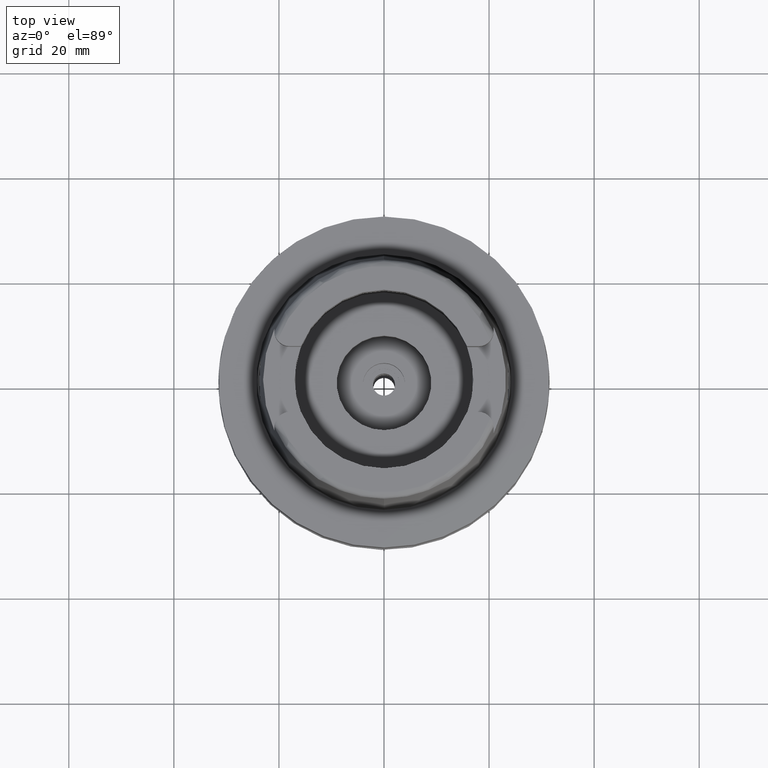
[diagram: clean part render]
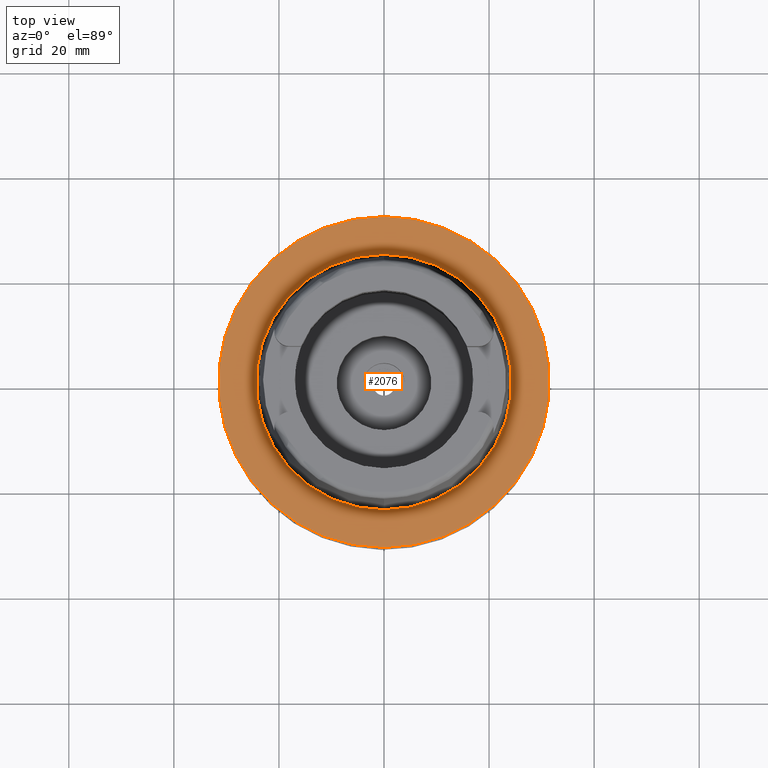
[diagram: same view with one face highlighted and labeled with its STEP entity id]
A machine part, top view. The second image highlights one B-rep face of the part: STEP entity #2076.
In plain terms, the highlighted planar face has unit normal (0, 0, -1).
Its self-contained STEP definition (entity closure, byte-faithful):
#211 = VERTEX_POINT ( 'NONE', #3516 ) ;
#570 = EDGE_CURVE ( 'NONE', #4201, #3991, #4044, .T. ) ;
#675 = FACE_BOUND ( 'NONE', #4983, .T. ) ;
#737 = DIRECTION ( 'NONE',  ( 0.0000000000000000000, 1.000000000000000000, 0.0000000000000000000 ) ) ;
#936 = ORIENTED_EDGE ( 'NONE', *, *, #570, .F. ) ;
#972 = CIRCLE ( 'NONE', #5176, 31.50000000000000000 ) ;
#1073 = CARTESIAN_POINT ( 'NONE',  ( 0.0000000000000000000, 1.224646799146999965E-14, 0.0000000000000000000 ) ) ;
#1636 = DIRECTION ( 'NONE',  ( 0.0000000000000000000, 0.0000000000000000000, 1.000000000000000000 ) ) ;
#2020 = DIRECTION ( 'NONE',  ( 0.0000000000000000000, 0.0000000000000000000, -1.000000000000000000 ) ) ;
#2046 = EDGE_CURVE ( 'NONE', #2380, #211, #2977, .T. ) ;
#2076 = ADVANCED_FACE ( 'NONE', ( #4985, #675 ), #2425, .F. ) ;
#2380 = VERTEX_POINT ( 'NONE', #5147 ) ;
#2425 = PLANE ( 'NONE',  #4528 ) ;
#2846 = EDGE_CURVE ( 'NONE', #211, #2380, #972, .T. ) ;
#2977 = CIRCLE ( 'NONE', #3976, 31.50000000000000000 ) ;
#2994 = EDGE_CURVE ( 'NONE', #3991, #4201, #4176, .T. ) ;
#2997 = DIRECTION ( 'NONE',  ( 0.0000000000000000000, 0.0000000000000000000, 1.000000000000000000 ) ) ;
#3109 = ORIENTED_EDGE ( 'NONE', *, *, #2994, .F. ) ;
#3278 = DIRECTION ( 'NONE',  ( 0.0000000000000000000, -1.000000000000000000, 0.0000000000000000000 ) ) ;
#3312 = CARTESIAN_POINT ( 'NONE',  ( 0.0000000000000000000, 1.679603085030999862E-14, -8.526512829120999020E-14 ) ) ;
#3506 = AXIS2_PLACEMENT_3D ( 'NONE', #4760, #1636, #3820 ) ;
#3516 = CARTESIAN_POINT ( 'NONE',  ( 0.0000000000000000000, 31.50000000000000000, -8.526512829120999020E-14 ) ) ;
#3589 = DIRECTION ( 'NONE',  ( 0.0000000000000000000, -1.000000000000000000, 0.0000000000000000000 ) ) ;
#3820 = DIRECTION ( 'NONE',  ( 0.0000000000000000000, 1.000000000000000000, 0.0000000000000000000 ) ) ;
#3884 = DIRECTION ( 'NONE',  ( 0.0000000000000000000, -1.000000000000000000, 0.0000000000000000000 ) ) ;
#3976 = AXIS2_PLACEMENT_3D ( 'NONE', #5445, #4956, #3278 ) ;
#3991 = VERTEX_POINT ( 'NONE', #3996 ) ;
#3996 = CARTESIAN_POINT ( 'NONE',  ( 0.0000000000000000000, -24.31503482328999866, 2.273736754432000254E-13 ) ) ;
#4044 = CIRCLE ( 'NONE', #3506, 24.31503482328999866 ) ;
#4129 = EDGE_LOOP ( 'NONE', ( #4591, #4889 ) ) ;
#4160 = DIRECTION ( 'NONE',  ( 0.0000000000000000000, 0.0000000000000000000, -1.000000000000000000 ) ) ;
#4176 = CIRCLE ( 'NONE', #4902, 24.31503482328999866 ) ;
#4201 = VERTEX_POINT ( 'NONE', #5221 ) ;
#4528 = AXIS2_PLACEMENT_3D ( 'NONE', #1073, #4160, #3589 ) ;
#4591 = ORIENTED_EDGE ( 'NONE', *, *, #2846, .F. ) ;
#4760 = CARTESIAN_POINT ( 'NONE',  ( 0.0000000000000000000, 1.413609354011999823E-14, 1.136868377215999875E-13 ) ) ;
#4889 = ORIENTED_EDGE ( 'NONE', *, *, #2046, .F. ) ;
#4902 = AXIS2_PLACEMENT_3D ( 'NONE', #5249, #2997, #3884 ) ;
#4956 = DIRECTION ( 'NONE',  ( 0.0000000000000000000, 0.0000000000000000000, -1.000000000000000000 ) ) ;
#4983 = EDGE_LOOP ( 'NONE', ( #936, #3109 ) ) ;
#4985 = FACE_OUTER_BOUND ( 'NONE', #4129, .T. ) ;
#5147 = CARTESIAN_POINT ( 'NONE',  ( 0.0000000000000000000, -31.50000000000000000, -8.526512829120999020E-14 ) ) ;
#5176 = AXIS2_PLACEMENT_3D ( 'NONE', #3312, #2020, #737 ) ;
#5221 = CARTESIAN_POINT ( 'NONE',  ( 0.0000000000000000000, 24.31503482328999866, 1.136868377215999875E-13 ) ) ;
#5249 = CARTESIAN_POINT ( 'NONE',  ( 0.0000000000000000000, 1.413609354011999823E-14, 1.136868377215999875E-13 ) ) ;
#5445 = CARTESIAN_POINT ( 'NONE',  ( 0.0000000000000000000, 1.679603085030999862E-14, -8.526512829120999020E-14 ) ) ;